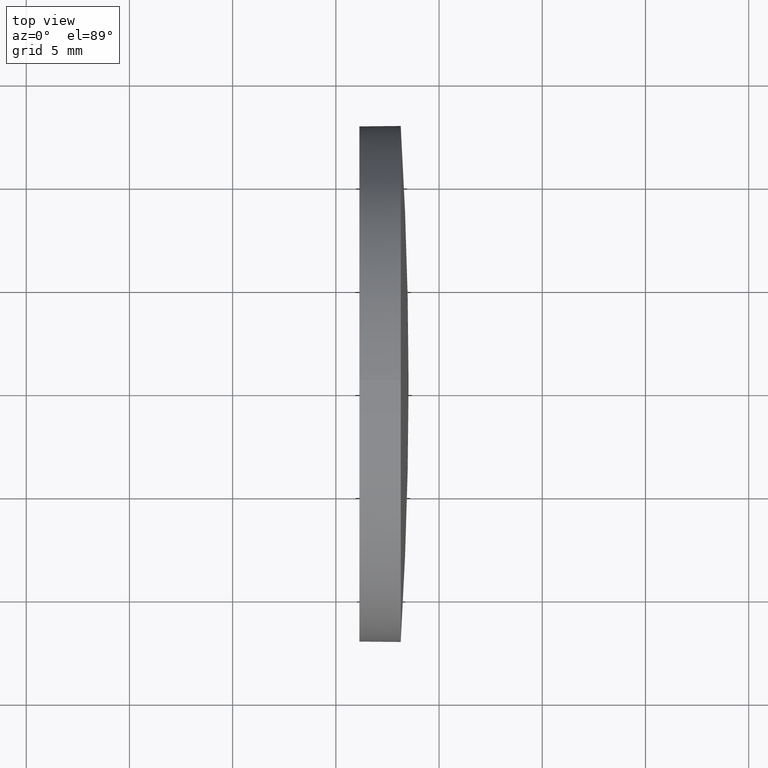
[diagram: clean part render]
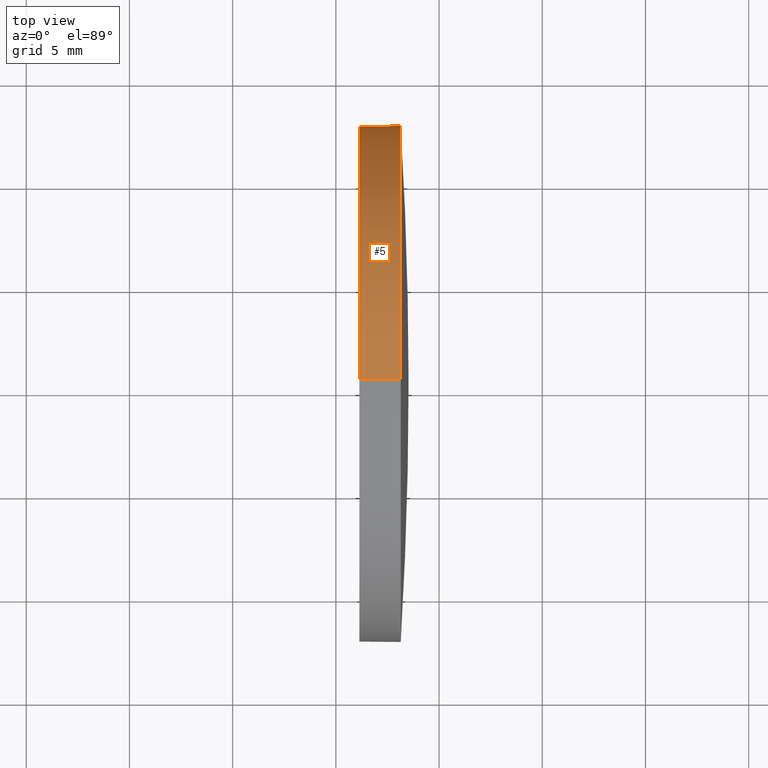
[diagram: same view with one face highlighted and labeled with its STEP entity id]
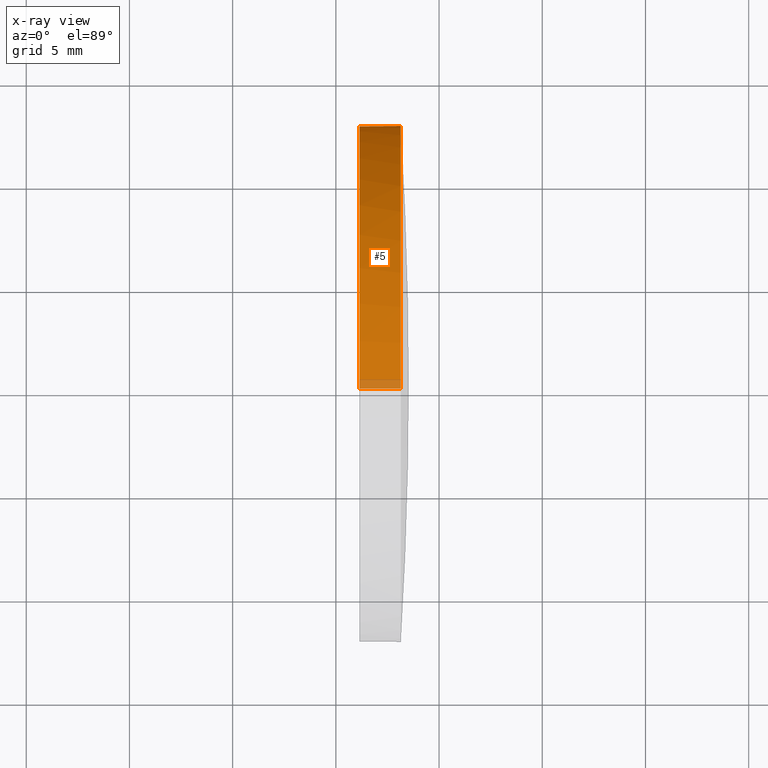
[diagram: x-ray of the same camera — body ghosted, the highlighted face saturated]
A machine part, top view. The second image highlights one B-rep face of the part: STEP entity #5.
The next image is the same camera in x-ray: the body ghosted, the highlighted face saturated — about 3% of this face is hidden behind the body in this view.
In plain terms, the highlighted cylindrical surface (partial cylindrical patch) has radius 12.5 mm, axis along (-1, -0, -0).
Its self-contained STEP definition (entity closure, byte-faithful):
#3 = ORIENTED_EDGE ( 'NONE', *, *, #93, .T. ) ;
#5 = ADVANCED_FACE ( 'NONE', ( #129 ), #138, .T. ) ;
#6 = CARTESIAN_POINT ( 'NONE',  ( 491.4000301772311400, 145.3379031391612800, 0.0000000000000000000 ) ) ;
#10 = CARTESIAN_POINT ( 'NONE',  ( 498.1420614191210300, 145.3379031391612800, 12.50000000000001100 ) ) ;
#15 = AXIS2_PLACEMENT_3D ( 'NONE', #171, #183, #21 ) ;
#19 = ORIENTED_EDGE ( 'NONE', *, *, #88, .T. ) ;
#20 = DIRECTION ( 'NONE',  ( -1.000000000000000000, -0.0000000000000000000, -0.0000000000000000000 ) ) ;
#21 = DIRECTION ( 'NONE',  ( 0.0000000000000000000, 0.0000000000000000000, 1.000000000000000000 ) ) ;
#24 = CARTESIAN_POINT ( 'NONE',  ( 496.1420614191210300, 145.3379031391612800, 12.50000000000001100 ) ) ;
#29 = EDGE_CURVE ( 'NONE', #35, #163, #166, .T. ) ;
#35 = VERTEX_POINT ( 'NONE', #141 ) ;
#48 = ORIENTED_EDGE ( 'NONE', *, *, #84, .F. ) ;
#51 = AXIS2_PLACEMENT_3D ( 'NONE', #112, #20, #110 ) ;
#54 = CIRCLE ( 'NONE', #15, 12.50000000000001100 ) ;
#61 = EDGE_LOOP ( 'NONE', ( #3, #73, #48, #102, #19 ) ) ;
#62 = LINE ( 'NONE', #162, #132 ) ;
#65 = VERTEX_POINT ( 'NONE', #10 ) ;
#72 = AXIS2_PLACEMENT_3D ( 'NONE', #6, #75, #139 ) ;
#73 = ORIENTED_EDGE ( 'NONE', *, *, #29, .T. ) ;
#75 = DIRECTION ( 'NONE',  ( -1.000000000000000000, -0.0000000000000000000, -0.0000000000000000000 ) ) ;
#77 = CIRCLE ( 'NONE', #51, 12.50000000000001100 ) ;
#84 = EDGE_CURVE ( 'NONE', #184, #163, #89, .T. ) ;
#88 = EDGE_CURVE ( 'NONE', #65, #143, #77, .T. ) ;
#89 = CIRCLE ( 'NONE', #124, 12.50000000000001100 ) ;
#93 = EDGE_CURVE ( 'NONE', #143, #35, #54, .T. ) ;
#95 = DIRECTION ( 'NONE',  ( 0.0000000000000000000, 0.0000000000000000000, 1.000000000000000000 ) ) ;
#98 = CARTESIAN_POINT ( 'NONE',  ( 496.1420614191210300, 145.3379031391612800, 0.0000000000000000000 ) ) ;
#102 = ORIENTED_EDGE ( 'NONE', *, *, #181, .F. ) ;
#109 = DIRECTION ( 'NONE',  ( -1.000000000000000000, -0.0000000000000000000, -0.0000000000000000000 ) ) ;
#110 = DIRECTION ( 'NONE',  ( 0.0000000000000000000, 0.0000000000000000000, 1.000000000000000000 ) ) ;
#112 = CARTESIAN_POINT ( 'NONE',  ( 498.1420614191210300, 145.3379031391612800, 0.0000000000000000000 ) ) ;
#118 = DIRECTION ( 'NONE',  ( -1.000000000000000000, -0.0000000000000000000, -0.0000000000000000000 ) ) ;
#123 = DIRECTION ( 'NONE',  ( -1.000000000000000000, -0.0000000000000000000, -0.0000000000000000000 ) ) ;
#124 = AXIS2_PLACEMENT_3D ( 'NONE', #98, #123, #95 ) ;
#125 = CARTESIAN_POINT ( 'NONE',  ( 491.4000301772311400, 145.3379031391612800, -12.50000000000001100 ) ) ;
#129 = FACE_OUTER_BOUND ( 'NONE', #61, .T. ) ;
#132 = VECTOR ( 'NONE', #118, 1000.000000000000000 ) ;
#138 = CYLINDRICAL_SURFACE ( 'NONE', #72, 12.50000000000001100 ) ;
#139 = DIRECTION ( 'NONE',  ( 0.0000000000000000000, 0.0000000000000000000, 1.000000000000000000 ) ) ;
#141 = CARTESIAN_POINT ( 'NONE',  ( 498.1420614191210300, 145.3379031391612800, -12.50000000000001100 ) ) ;
#143 = VERTEX_POINT ( 'NONE', #169 ) ;
#147 = VECTOR ( 'NONE', #109, 1000.000000000000000 ) ;
#162 = CARTESIAN_POINT ( 'NONE',  ( 491.4000301772311400, 145.3379031391612800, 12.50000000000001100 ) ) ;
#163 = VERTEX_POINT ( 'NONE', #172 ) ;
#166 = LINE ( 'NONE', #125, #147 ) ;
#169 = CARTESIAN_POINT ( 'NONE',  ( 498.1420614191210300, 157.8379031391612800, 1.530808498934174600E-015 ) ) ;
#171 = CARTESIAN_POINT ( 'NONE',  ( 498.1420614191210300, 145.3379031391612800, 0.0000000000000000000 ) ) ;
#172 = CARTESIAN_POINT ( 'NONE',  ( 496.1420614191210300, 145.3379031391612800, -12.50000000000001100 ) ) ;
#181 = EDGE_CURVE ( 'NONE', #65, #184, #62, .T. ) ;
#183 = DIRECTION ( 'NONE',  ( -1.000000000000000000, -0.0000000000000000000, -0.0000000000000000000 ) ) ;
#184 = VERTEX_POINT ( 'NONE', #24 ) ;